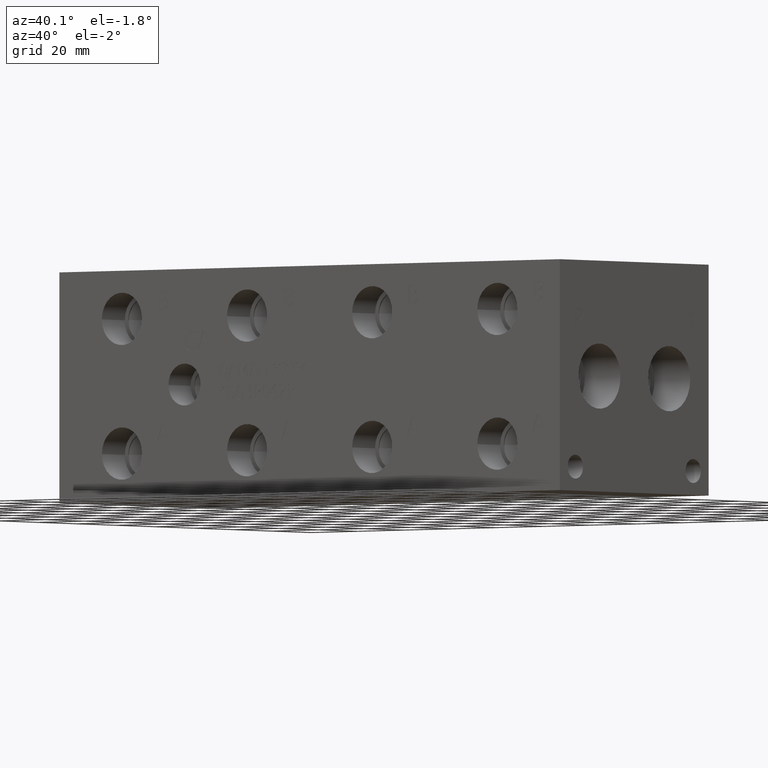
[diagram: clean part render]
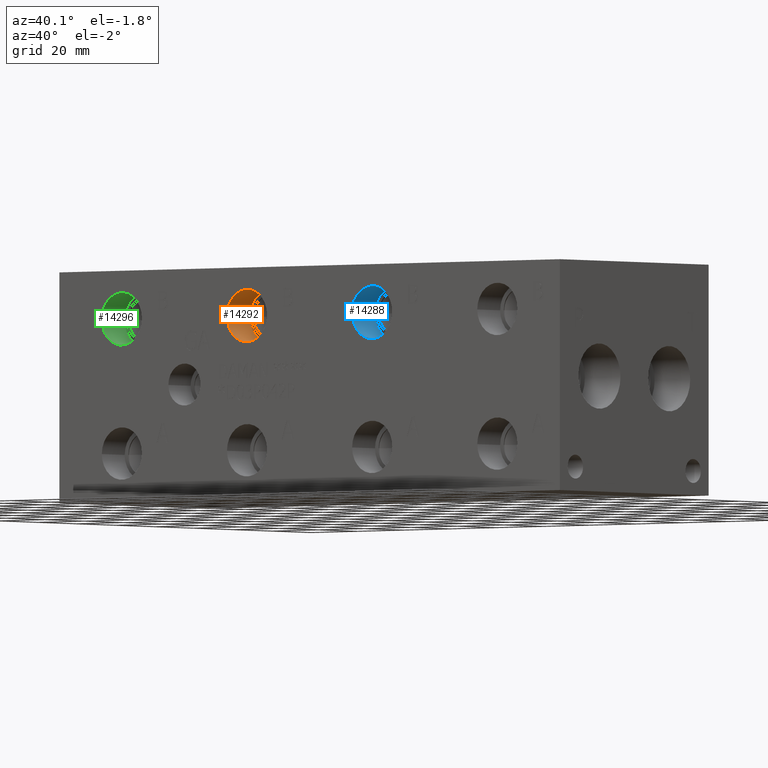
[diagram: same view with three faces highlighted in distinct colors, each labeled with its STEP entity id]
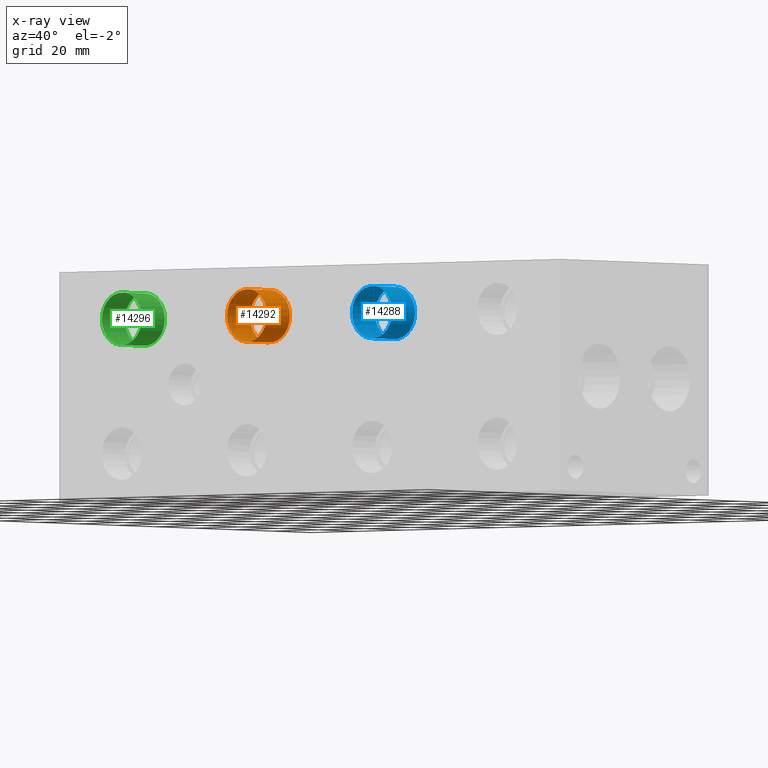
[diagram: x-ray of the same camera — body ghosted, the three highlighted faces saturated]
A machine part, auxiliary view with three faces highlighted in distinct colors.
The next image is the same camera in x-ray (body ghosted, the three faces saturated) — at least one of them is partly hidden behind the body in this view.
Their STEP definitions:

[orange] entity #14292 — the highlighted cylindrical surface (bore or boss wall) has radius 8.6487 mm, axis along (0, -1, 0).
#72=CYLINDRICAL_SURFACE('',#15119,8.6487);
#167=CIRCLE('',#14458,8.6487);
#168=CIRCLE('',#14459,8.6487);
#404=CIRCLE('',#15116,8.6487);
#405=CIRCLE('',#15117,8.6487);
#1717=FACE_OUTER_BOUND('',#2549,.T.);
#2549=EDGE_LOOP('',(#12529,#12530,#12531,#12532,#12533,#12534));
#3921=LINE('',#24394,#5227);
#5227=VECTOR('',#18013,8.6487);
#5989=VERTEX_POINT('',#20481);
#5990=VERTEX_POINT('',#20482);
#6907=VERTEX_POINT('',#24387);
#6908=VERTEX_POINT('',#24388);
#7513=EDGE_CURVE('',#5989,#5990,#167,.T.);
#7514=EDGE_CURVE('',#5990,#5989,#168,.T.);
#8842=EDGE_CURVE('',#6907,#6908,#404,.T.);
#8843=EDGE_CURVE('',#6908,#6907,#405,.T.);
#8845=EDGE_CURVE('',#5990,#6908,#3921,.T.);
#12529=ORIENTED_EDGE('',*,*,#7513,.F.);
#12530=ORIENTED_EDGE('',*,*,#7514,.F.);
#12531=ORIENTED_EDGE('',*,*,#8845,.T.);
#12532=ORIENTED_EDGE('',*,*,#8842,.F.);
#12533=ORIENTED_EDGE('',*,*,#8843,.F.);
#12534=ORIENTED_EDGE('',*,*,#8845,.F.);
#14292=ADVANCED_FACE('',(#1717),#72,.F.);
#14458=AXIS2_PLACEMENT_3D('',#20483,#15759,#15760);
#14459=AXIS2_PLACEMENT_3D('',#20484,#15761,#15762);
#15116=AXIS2_PLACEMENT_3D('',#24389,#18005,#18006);
#15117=AXIS2_PLACEMENT_3D('',#24390,#18007,#18008);
#15119=AXIS2_PLACEMENT_3D('',#24393,#18011,#18012);
#15759=DIRECTION('center_axis',(0.,1.,0.));
#15760=DIRECTION('ref_axis',(1.,0.,0.));
#15761=DIRECTION('center_axis',(0.,1.,0.));
#15762=DIRECTION('ref_axis',(1.,0.,0.));
#18005=DIRECTION('center_axis',(0.,-1.,0.));
#18006=DIRECTION('ref_axis',(1.,0.,0.));
#18007=DIRECTION('center_axis',(0.,-1.,0.));
#18008=DIRECTION('ref_axis',(1.,0.,0.));
#18011=DIRECTION('center_axis',(0.,-1.,0.));
#18012=DIRECTION('ref_axis',(1.,0.,0.));
#18013=DIRECTION('',(0.,1.,0.));
#20481=CARTESIAN_POINT('',(89.5985,0.,60.325));
#20482=CARTESIAN_POINT('',(72.3011,0.,60.325));
#20483=CARTESIAN_POINT('Origin',(80.9498,0.,60.325));
#20484=CARTESIAN_POINT('Origin',(80.9498,0.,60.325));
#24387=CARTESIAN_POINT('',(89.5985,11.7348,60.325));
#24388=CARTESIAN_POINT('',(72.3011,11.7348,60.325));
#24389=CARTESIAN_POINT('Origin',(80.9498,11.7348,60.325));
#24390=CARTESIAN_POINT('Origin',(80.9498,11.7348,60.325));
#24393=CARTESIAN_POINT('Origin',(80.9498,5.8674,60.325));
#24394=CARTESIAN_POINT('',(72.3011,5.8674,60.325));

[blue] entity #14288 — the highlighted cylindrical surface (bore or boss wall) has radius 8.6487 mm, axis along (0, -1, 0).
#70=CYLINDRICAL_SURFACE('',#15110,8.6487);
#165=CIRCLE('',#14456,8.6487);
#166=CIRCLE('',#14457,8.6487);
#399=CIRCLE('',#15107,8.6487);
#400=CIRCLE('',#15108,8.6487);
#1713=FACE_OUTER_BOUND('',#2544,.T.);
#2544=EDGE_LOOP('',(#12511,#12512,#12513,#12514,#12515,#12516));
#3918=LINE('',#24376,#5224);
#5224=VECTOR('',#17992,8.6487);
#5987=VERTEX_POINT('',#20477);
#5988=VERTEX_POINT('',#20478);
#6901=VERTEX_POINT('',#24369);
#6902=VERTEX_POINT('',#24370);
#7511=EDGE_CURVE('',#5987,#5988,#165,.T.);
#7512=EDGE_CURVE('',#5988,#5987,#166,.T.);
#8834=EDGE_CURVE('',#6901,#6902,#399,.T.);
#8835=EDGE_CURVE('',#6902,#6901,#400,.T.);
#8837=EDGE_CURVE('',#5988,#6902,#3918,.T.);
#12511=ORIENTED_EDGE('',*,*,#7511,.F.);
#12512=ORIENTED_EDGE('',*,*,#7512,.F.);
#12513=ORIENTED_EDGE('',*,*,#8837,.T.);
#12514=ORIENTED_EDGE('',*,*,#8834,.F.);
#12515=ORIENTED_EDGE('',*,*,#8835,.F.);
#12516=ORIENTED_EDGE('',*,*,#8837,.F.);
#14288=ADVANCED_FACE('',(#1713),#70,.F.);
#14456=AXIS2_PLACEMENT_3D('',#20479,#15755,#15756);
#14457=AXIS2_PLACEMENT_3D('',#20480,#15757,#15758);
#15107=AXIS2_PLACEMENT_3D('',#24371,#17984,#17985);
#15108=AXIS2_PLACEMENT_3D('',#24372,#17986,#17987);
#15110=AXIS2_PLACEMENT_3D('',#24375,#17990,#17991);
#15755=DIRECTION('center_axis',(0.,1.,0.));
#15756=DIRECTION('ref_axis',(1.,0.,0.));
#15757=DIRECTION('center_axis',(0.,1.,0.));
#15758=DIRECTION('ref_axis',(1.,0.,0.));
#17984=DIRECTION('center_axis',(0.,-1.,0.));
#17985=DIRECTION('ref_axis',(1.,0.,0.));
#17986=DIRECTION('center_axis',(0.,-1.,0.));
#17987=DIRECTION('ref_axis',(1.,0.,0.));
#17990=DIRECTION('center_axis',(0.,-1.,0.));
#17991=DIRECTION('ref_axis',(1.,0.,0.));
#17992=DIRECTION('',(0.,1.,0.));
#20477=CARTESIAN_POINT('',(143.5735,0.,60.325));
#20478=CARTESIAN_POINT('',(126.2761,0.,60.325));
#20479=CARTESIAN_POINT('Origin',(134.9248,0.,60.325));
#20480=CARTESIAN_POINT('Origin',(134.9248,0.,60.325));
#24369=CARTESIAN_POINT('',(143.5735,11.7348,60.325));
#24370=CARTESIAN_POINT('',(126.2761,11.7348,60.325));
#24371=CARTESIAN_POINT('Origin',(134.9248,11.7348,60.325));
#24372=CARTESIAN_POINT('Origin',(134.9248,11.7348,60.325));
#24375=CARTESIAN_POINT('Origin',(134.9248,5.8674,60.325));
#24376=CARTESIAN_POINT('',(126.2761,5.8674,60.325));

[green] entity #14296 — the highlighted cylindrical surface (bore or boss wall) has radius 8.6487 mm, axis along (0, -1, 0).
#74=CYLINDRICAL_SURFACE('',#15128,8.6487);
#169=CIRCLE('',#14460,8.6487);
#170=CIRCLE('',#14461,8.6487);
#409=CIRCLE('',#15125,8.6487);
#410=CIRCLE('',#15126,8.6487);
#1721=FACE_OUTER_BOUND('',#2554,.T.);
#2554=EDGE_LOOP('',(#12547,#12548,#12549,#12550,#12551,#12552));
#3924=LINE('',#24412,#5230);
#5230=VECTOR('',#18034,8.6487);
#5991=VERTEX_POINT('',#20485);
#5992=VERTEX_POINT('',#20486);
#6913=VERTEX_POINT('',#24405);
#6914=VERTEX_POINT('',#24406);
#7515=EDGE_CURVE('',#5991,#5992,#169,.T.);
#7516=EDGE_CURVE('',#5992,#5991,#170,.T.);
#8850=EDGE_CURVE('',#6913,#6914,#409,.T.);
#8851=EDGE_CURVE('',#6914,#6913,#410,.T.);
#8853=EDGE_CURVE('',#5992,#6914,#3924,.T.);
#12547=ORIENTED_EDGE('',*,*,#7515,.F.);
#12548=ORIENTED_EDGE('',*,*,#7516,.F.);
#12549=ORIENTED_EDGE('',*,*,#8853,.T.);
#12550=ORIENTED_EDGE('',*,*,#8850,.F.);
#12551=ORIENTED_EDGE('',*,*,#8851,.F.);
#12552=ORIENTED_EDGE('',*,*,#8853,.F.);
#14296=ADVANCED_FACE('',(#1721),#74,.F.);
#14460=AXIS2_PLACEMENT_3D('',#20487,#15763,#15764);
#14461=AXIS2_PLACEMENT_3D('',#20488,#15765,#15766);
#15125=AXIS2_PLACEMENT_3D('',#24407,#18026,#18027);
#15126=AXIS2_PLACEMENT_3D('',#24408,#18028,#18029);
#15128=AXIS2_PLACEMENT_3D('',#24411,#18032,#18033);
#15763=DIRECTION('center_axis',(0.,1.,0.));
#15764=DIRECTION('ref_axis',(1.,0.,0.));
#15765=DIRECTION('center_axis',(0.,1.,0.));
#15766=DIRECTION('ref_axis',(1.,0.,0.));
#18026=DIRECTION('center_axis',(0.,-1.,0.));
#18027=DIRECTION('ref_axis',(1.,0.,0.));
#18028=DIRECTION('center_axis',(0.,-1.,0.));
#18029=DIRECTION('ref_axis',(1.,0.,0.));
#18032=DIRECTION('center_axis',(0.,-1.,0.));
#18033=DIRECTION('ref_axis',(1.,0.,0.));
#18034=DIRECTION('',(0.,1.,0.));
#20485=CARTESIAN_POINT('',(35.6235,0.,60.325));
#20486=CARTESIAN_POINT('',(18.3261,0.,60.325));
#20487=CARTESIAN_POINT('Origin',(26.9748,0.,60.325));
#20488=CARTESIAN_POINT('Origin',(26.9748,0.,60.325));
#24405=CARTESIAN_POINT('',(35.6235,11.7348,60.325));
#24406=CARTESIAN_POINT('',(18.3261,11.7348,60.325));
#24407=CARTESIAN_POINT('Origin',(26.9748,11.7348,60.325));
#24408=CARTESIAN_POINT('Origin',(26.9748,11.7348,60.325));
#24411=CARTESIAN_POINT('Origin',(26.9748,5.8674,60.325));
#24412=CARTESIAN_POINT('',(18.3261,5.8674,60.325));